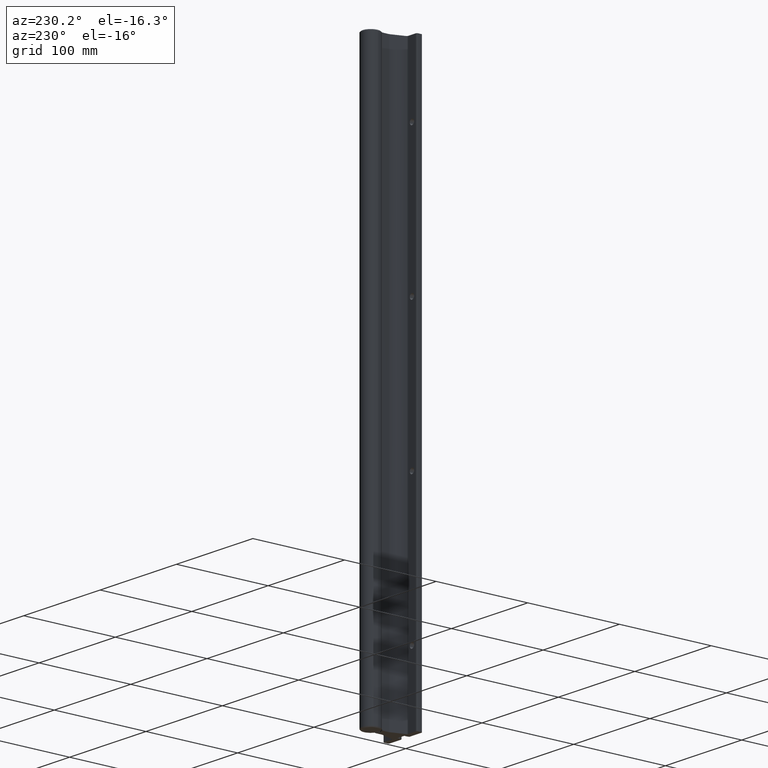
[diagram: clean part render]
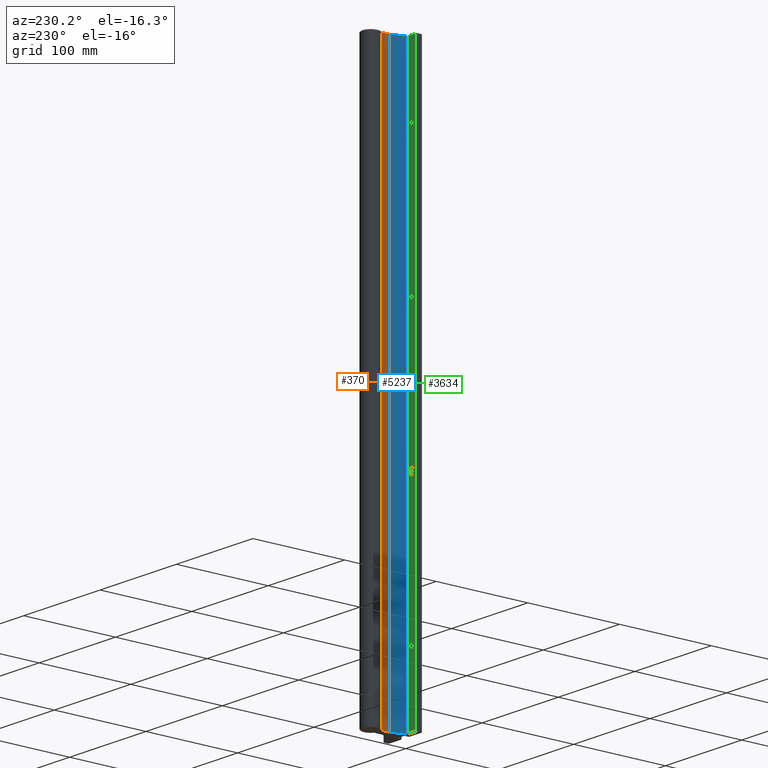
[diagram: same view with three faces highlighted in distinct colors, each labeled with its STEP entity id]
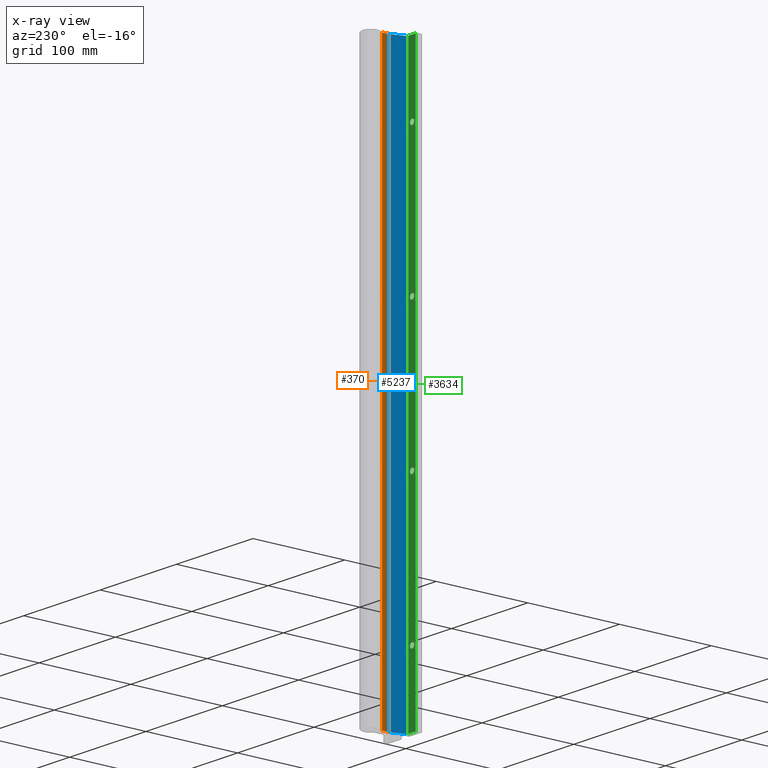
[diagram: x-ray of the same camera — body ghosted, the three highlighted faces saturated]
A machine part, auxiliary view with three faces highlighted in distinct colors.
The next image is the same camera in x-ray (body ghosted, the three faces saturated) — at least one of them is partly hidden behind the body in this view.
Their STEP definitions:

[orange] entity #370 — the highlighted planar face has unit normal (-1, 0, 0).
#152 = VERTEX_POINT ( 'NONE', #2481 ) ;
#251 = ORIENTED_EDGE ( 'NONE', *, *, #3077, .F. ) ;
#370 = ADVANCED_FACE ( 'NONE', ( #1923 ), #3578, .T. ) ;
#606 = DIRECTION ( 'NONE',  ( 0.0000000000000000000, 0.0000000000000000000, 1.000000000000000000 ) ) ;
#691 = CARTESIAN_POINT ( 'NONE',  ( -0.1875000000000001943, 1.169177754238574618, -26.10463218188032641 ) ) ;
#882 = AXIS2_PLACEMENT_3D ( 'NONE', #691, #4591, #1636 ) ;
#963 = VECTOR ( 'NONE', #606, 39.37007874015748143 ) ;
#990 = CARTESIAN_POINT ( 'NONE',  ( -0.1875000000000001943, 1.169177754238574618, -24.00000000000000355 ) ) ;
#1055 = DIRECTION ( 'NONE',  ( 9.170384428801442724E-16, 1.000000000000000000, -0.0000000000000000000 ) ) ;
#1062 = EDGE_CURVE ( 'NONE', #5113, #152, #5459, .T. ) ;
#1482 = LINE ( 'NONE', #5526, #5398 ) ;
#1636 = DIRECTION ( 'NONE',  ( -9.170384428801442724E-16, -1.000000000000000000, 0.0000000000000000000 ) ) ;
#1923 = FACE_OUTER_BOUND ( 'NONE', #5215, .T. ) ;
#2047 = LINE ( 'NONE', #3970, #963 ) ;
#2068 = VERTEX_POINT ( 'NONE', #2752 ) ;
#2426 = CARTESIAN_POINT ( 'NONE',  ( -0.1875000000000004718, 0.8712787932000009006, -26.10463218188032641 ) ) ;
#2481 = CARTESIAN_POINT ( 'NONE',  ( -0.1875000000000004718, 0.8712787932000009006, 0.0000000000000000000 ) ) ;
#2592 = EDGE_CURVE ( 'NONE', #2068, #152, #5597, .T. ) ;
#2752 = CARTESIAN_POINT ( 'NONE',  ( -0.1875000000000001943, 1.169177754238574618, 0.0000000000000000000 ) ) ;
#2899 = DIRECTION ( 'NONE',  ( -9.170384428801442724E-16, -1.000000000000000000, 0.0000000000000000000 ) ) ;
#2984 = DIRECTION ( 'NONE',  ( 0.0000000000000000000, 0.0000000000000000000, 1.000000000000000000 ) ) ;
#3077 = EDGE_CURVE ( 'NONE', #5737, #2068, #2047, .T. ) ;
#3111 = ORIENTED_EDGE ( 'NONE', *, *, #2592, .F. ) ;
#3578 = PLANE ( 'NONE',  #882 ) ;
#3970 = CARTESIAN_POINT ( 'NONE',  ( -0.1875000000000001943, 1.169177754238574618, -26.10463218188032641 ) ) ;
#4079 = ORIENTED_EDGE ( 'NONE', *, *, #1062, .T. ) ;
#4086 = EDGE_CURVE ( 'NONE', #5113, #5737, #1482, .T. ) ;
#4591 = DIRECTION ( 'NONE',  ( -1.000000000000000000, 9.170384428801442724E-16, 0.0000000000000000000 ) ) ;
#4759 = VECTOR ( 'NONE', #2984, 39.37007874015748143 ) ;
#4950 = ORIENTED_EDGE ( 'NONE', *, *, #4086, .F. ) ;
#5113 = VERTEX_POINT ( 'NONE', #5960 ) ;
#5215 = EDGE_LOOP ( 'NONE', ( #4950, #4079, #3111, #251 ) ) ;
#5398 = VECTOR ( 'NONE', #1055, 39.37007874015748143 ) ;
#5459 = LINE ( 'NONE', #2426, #4759 ) ;
#5526 = CARTESIAN_POINT ( 'NONE',  ( -0.1875000000000001943, 1.169177754238574618, -24.00000000000000355 ) ) ;
#5597 = LINE ( 'NONE', #5846, #5889 ) ;
#5737 = VERTEX_POINT ( 'NONE', #990 ) ;
#5846 = CARTESIAN_POINT ( 'NONE',  ( -0.1875000000000001943, 1.169177754238574618, 0.0000000000000000000 ) ) ;
#5889 = VECTOR ( 'NONE', #2899, 39.37007874015748143 ) ;
#5960 = CARTESIAN_POINT ( 'NONE',  ( -0.1875000000000004718, 0.8712787932000006785, -24.00000000000000355 ) ) ;

[blue] entity #5237 — the highlighted planar face has unit normal (-0.9511, 0.309, 0).
#40 = VECTOR ( 'NONE', #3722, 39.37007874015748143 ) ;
#342 = VECTOR ( 'NONE', #3027, 39.37007874015748143 ) ;
#343 = VECTOR ( 'NONE', #1204, 39.37007874015748143 ) ;
#743 = LINE ( 'NONE', #5945, #342 ) ;
#971 = CARTESIAN_POINT ( 'NONE',  ( -0.1905589677000024129, 0.8519652309999998785, 0.0000000000000000000 ) ) ;
#1204 = DIRECTION ( 'NONE',  ( 0.3090169943511710260, 0.9510565163028790181, -0.0000000000000000000 ) ) ;
#1327 = VECTOR ( 'NONE', #5315, 39.37007874015748143 ) ;
#1692 = CARTESIAN_POINT ( 'NONE',  ( -0.3721172034000003181, 0.2931864378999994303, -24.00000000000000355 ) ) ;
#2409 = VERTEX_POINT ( 'NONE', #971 ) ;
#2518 = ORIENTED_EDGE ( 'NONE', *, *, #4308, .F. ) ;
#2566 = LINE ( 'NONE', #3760, #40 ) ;
#2623 = DIRECTION ( 'NONE',  ( -0.9510565163028790181, 0.3090169943511710260, 0.0000000000000000000 ) ) ;
#2651 = LINE ( 'NONE', #5254, #1327 ) ;
#2655 = EDGE_LOOP ( 'NONE', ( #3202, #4357, #2518, #6034 ) ) ;
#2670 = CARTESIAN_POINT ( 'NONE',  ( -0.1905589677000024129, 0.8519652309999998785, -24.00000000000000355 ) ) ;
#2762 = AXIS2_PLACEMENT_3D ( 'NONE', #5560, #2623, #5589 ) ;
#3027 = DIRECTION ( 'NONE',  ( 0.0000000000000000000, 0.0000000000000000000, 1.000000000000000000 ) ) ;
#3186 = VERTEX_POINT ( 'NONE', #3659 ) ;
#3202 = ORIENTED_EDGE ( 'NONE', *, *, #4696, .F. ) ;
#3659 = CARTESIAN_POINT ( 'NONE',  ( -0.3721172034000003737, 0.2931864378999993193, 0.0000000000000000000 ) ) ;
#3722 = DIRECTION ( 'NONE',  ( -0.3090169943511710260, -0.9510565163028790181, 0.0000000000000000000 ) ) ;
#3760 = CARTESIAN_POINT ( 'NONE',  ( -0.1905589677000024129, 0.8519652309999998785, 0.0000000000000000000 ) ) ;
#4098 = PLANE ( 'NONE',  #2762 ) ;
#4308 = EDGE_CURVE ( 'NONE', #2409, #3186, #2566, .T. ) ;
#4357 = ORIENTED_EDGE ( 'NONE', *, *, #6337, .T. ) ;
#4385 = CARTESIAN_POINT ( 'NONE',  ( -0.1905589677000024129, 0.8519652309999998785, -24.00000000000000355 ) ) ;
#4696 = EDGE_CURVE ( 'NONE', #5868, #5188, #6028, .T. ) ;
#5162 = FACE_OUTER_BOUND ( 'NONE', #2655, .T. ) ;
#5188 = VERTEX_POINT ( 'NONE', #4385 ) ;
#5237 = ADVANCED_FACE ( 'NONE', ( #5162 ), #4098, .T. ) ;
#5254 = CARTESIAN_POINT ( 'NONE',  ( -0.1905589677000024129, 0.8519652309999998785, -26.10463218188032641 ) ) ;
#5315 = DIRECTION ( 'NONE',  ( 0.0000000000000000000, 0.0000000000000000000, 1.000000000000000000 ) ) ;
#5560 = CARTESIAN_POINT ( 'NONE',  ( -0.1905589677000024129, 0.8519652309999998785, -26.10463218188032641 ) ) ;
#5589 = DIRECTION ( 'NONE',  ( -0.3090169943511710260, -0.9510565163028790181, 0.0000000000000000000 ) ) ;
#5868 = VERTEX_POINT ( 'NONE', #1692 ) ;
#5945 = CARTESIAN_POINT ( 'NONE',  ( -0.3721172034000003181, 0.2931864378999993193, -26.10463218188032641 ) ) ;
#6028 = LINE ( 'NONE', #2670, #343 ) ;
#6034 = ORIENTED_EDGE ( 'NONE', *, *, #6089, .F. ) ;
#6089 = EDGE_CURVE ( 'NONE', #5188, #2409, #2651, .T. ) ;
#6337 = EDGE_CURVE ( 'NONE', #5868, #3186, #743, .T. ) ;

[green] entity #3634 — the highlighted planar face has unit normal (-0, 1, 0).
#32 = CARTESIAN_POINT ( 'NONE',  ( -0.8150000000000001688, 0.2499999999999999167, 0.0000000000000000000 ) ) ;
#42 = VERTEX_POINT ( 'NONE', #5817 ) ;
#51 = FACE_BOUND ( 'NONE', #6262, .T. ) ;
#183 = EDGE_CURVE ( 'NONE', #397, #42, #5711, .T. ) ;
#249 = ORIENTED_EDGE ( 'NONE', *, *, #840, .T. ) ;
#284 = DIRECTION ( 'NONE',  ( -1.000000000000000000, -3.090325784688081870E-15, 0.0000000000000000000 ) ) ;
#303 = CARTESIAN_POINT ( 'NONE',  ( -0.6250000000000000000, 0.2500000000000004996, -15.00000000000000000 ) ) ;
#385 = DIRECTION ( 'NONE',  ( 3.027931502002314364E-15, -1.000000000000000000, -0.0000000000000000000 ) ) ;
#397 = VERTEX_POINT ( 'NONE', #4648 ) ;
#411 = VECTOR ( 'NONE', #6272, 39.37007874015748143 ) ;
#419 = CIRCLE ( 'NONE', #4602, 0.1104999999999999594 ) ;
#450 = CARTESIAN_POINT ( 'NONE',  ( -0.6250000000000000000, 0.2500000000000004996, -21.00000000000000355 ) ) ;
#490 = DIRECTION ( 'NONE',  ( -1.000000000000000000, -3.090325784688081870E-15, 0.0000000000000000000 ) ) ;
#595 = DIRECTION ( 'NONE',  ( -1.000000000000000000, -3.027931502002314364E-15, 0.0000000000000000000 ) ) ;
#636 = EDGE_CURVE ( 'NONE', #2220, #2572, #1240, .T. ) ;
#665 = VERTEX_POINT ( 'NONE', #2867 ) ;
#840 = EDGE_CURVE ( 'NONE', #42, #397, #1549, .T. ) ;
#965 = AXIS2_PLACEMENT_3D ( 'NONE', #303, #4727, #284 ) ;
#966 = VERTEX_POINT ( 'NONE', #2874 ) ;
#992 = CARTESIAN_POINT ( 'NONE',  ( -0.6250000000000000000, 0.2500000000000004996, -8.889500000000001734 ) ) ;
#1130 = DIRECTION ( 'NONE',  ( 3.027931502002314364E-15, -1.000000000000000000, -0.0000000000000000000 ) ) ;
#1151 = VERTEX_POINT ( 'NONE', #3096 ) ;
#1157 = EDGE_LOOP ( 'NONE', ( #1818, #3203 ) ) ;
#1195 = AXIS2_PLACEMENT_3D ( 'NONE', #4848, #385, #4870 ) ;
#1240 = CIRCLE ( 'NONE', #4665, 0.1104999999999999594 ) ;
#1245 = DIRECTION ( 'NONE',  ( -1.000000000000000000, -3.090325784688081870E-15, 0.0000000000000000000 ) ) ;
#1381 = EDGE_CURVE ( 'NONE', #966, #3990, #4456, .T. ) ;
#1538 = EDGE_LOOP ( 'NONE', ( #1913, #4961, #3968, #1884 ) ) ;
#1549 = CIRCLE ( 'NONE', #6307, 0.1104999999999999594 ) ;
#1573 = DIRECTION ( 'NONE',  ( -1.000000000000000000, -3.090325784688081870E-15, 0.0000000000000000000 ) ) ;
#1673 = AXIS2_PLACEMENT_3D ( 'NONE', #5500, #1995, #2982 ) ;
#1720 = LINE ( 'NONE', #2379, #411 ) ;
#1803 = ORIENTED_EDGE ( 'NONE', *, *, #636, .T. ) ;
#1818 = ORIENTED_EDGE ( 'NONE', *, *, #4122, .T. ) ;
#1819 = ORIENTED_EDGE ( 'NONE', *, *, #183, .T. ) ;
#1884 = ORIENTED_EDGE ( 'NONE', *, *, #5000, .F. ) ;
#1913 = ORIENTED_EDGE ( 'NONE', *, *, #4937, .F. ) ;
#1995 = DIRECTION ( 'NONE',  ( 3.027931502002314364E-15, -1.000000000000000000, -0.0000000000000000000 ) ) ;
#2037 = FACE_BOUND ( 'NONE', #1157, .T. ) ;
#2161 = CARTESIAN_POINT ( 'NONE',  ( -0.6250000000000000000, 0.2500000000000004996, -15.00000000000000000 ) ) ;
#2220 = VERTEX_POINT ( 'NONE', #2895 ) ;
#2322 = CARTESIAN_POINT ( 'NONE',  ( -0.6250000000000000000, 0.2500000000000004996, -20.88950000000000173 ) ) ;
#2324 = DIRECTION ( 'NONE',  ( -1.000000000000000000, -3.090325784688081870E-15, 0.0000000000000000000 ) ) ;
#2329 = ORIENTED_EDGE ( 'NONE', *, *, #4073, .T. ) ;
#2379 = CARTESIAN_POINT ( 'NONE',  ( -0.4315582357000016800, 0.2500000000000011657, -26.10463218188032641 ) ) ;
#2550 = DIRECTION ( 'NONE',  ( -3.027931502002314364E-15, 1.000000000000000000, 0.0000000000000000000 ) ) ;
#2572 = VERTEX_POINT ( 'NONE', #2322 ) ;
#2654 = CIRCLE ( 'NONE', #2748, 0.1104999999999999594 ) ;
#2709 = CARTESIAN_POINT ( 'NONE',  ( -0.6250000000000000000, 0.2500000000000004996, -3.000000000000000444 ) ) ;
#2748 = AXIS2_PLACEMENT_3D ( 'NONE', #2161, #3097, #3583 ) ;
#2780 = EDGE_CURVE ( 'NONE', #3271, #5939, #4652, .T. ) ;
#2860 = CIRCLE ( 'NONE', #3926, 0.1104999999999999594 ) ;
#2867 = CARTESIAN_POINT ( 'NONE',  ( -0.6250000000000000000, 0.2500000000000004996, -9.110500000000001819 ) ) ;
#2874 = CARTESIAN_POINT ( 'NONE',  ( -0.8150000000000001688, 0.2499999999999999167, -24.00000000000000355 ) ) ;
#2888 = DIRECTION ( 'NONE',  ( 3.027931502002314364E-15, -1.000000000000000000, -0.0000000000000000000 ) ) ;
#2895 = CARTESIAN_POINT ( 'NONE',  ( -0.6250000000000000000, 0.2500000000000004996, -21.11050000000000537 ) ) ;
#2953 = FACE_BOUND ( 'NONE', #6288, .T. ) ;
#2982 = DIRECTION ( 'NONE',  ( -1.000000000000000000, -3.090325784688081870E-15, 0.0000000000000000000 ) ) ;
#2997 = DIRECTION ( 'NONE',  ( 0.0000000000000000000, 0.0000000000000000000, 1.000000000000000000 ) ) ;
#3018 = CIRCLE ( 'NONE', #1195, 0.1104999999999999594 ) ;
#3096 = CARTESIAN_POINT ( 'NONE',  ( -0.4315582357000016800, 0.2500000000000011657, 0.0000000000000000000 ) ) ;
#3097 = DIRECTION ( 'NONE',  ( 3.027931502002314364E-15, -1.000000000000000000, -0.0000000000000000000 ) ) ;
#3103 = CARTESIAN_POINT ( 'NONE',  ( -0.6250000000000000000, 0.2500000000000004996, -14.88949999999999996 ) ) ;
#3203 = ORIENTED_EDGE ( 'NONE', *, *, #2780, .T. ) ;
#3236 = DIRECTION ( 'NONE',  ( 3.027931502002314364E-15, -1.000000000000000000, -0.0000000000000000000 ) ) ;
#3271 = VERTEX_POINT ( 'NONE', #3103 ) ;
#3357 = ORIENTED_EDGE ( 'NONE', *, *, #4877, .T. ) ;
#3555 = FACE_OUTER_BOUND ( 'NONE', #1538, .T. ) ;
#3583 = DIRECTION ( 'NONE',  ( -1.000000000000000000, -3.090325784688081870E-15, 0.0000000000000000000 ) ) ;
#3634 = ADVANCED_FACE ( 'NONE', ( #51, #2037, #6190, #2953, #3555 ), #4387, .T. ) ;
#3640 = AXIS2_PLACEMENT_3D ( 'NONE', #3904, #2550, #595 ) ;
#3742 = VERTEX_POINT ( 'NONE', #992 ) ;
#3799 = DIRECTION ( 'NONE',  ( 3.027931502002314364E-15, -1.000000000000000000, -0.0000000000000000000 ) ) ;
#3904 = CARTESIAN_POINT ( 'NONE',  ( -0.4315582357000016800, 0.2500000000000011102, -26.10463218188032641 ) ) ;
#3918 = DIRECTION ( 'NONE',  ( 1.000000000000000000, 3.027931502002314364E-15, -0.0000000000000000000 ) ) ;
#3926 = AXIS2_PLACEMENT_3D ( 'NONE', #450, #3799, #2324 ) ;
#3968 = ORIENTED_EDGE ( 'NONE', *, *, #4022, .F. ) ;
#3990 = VERTEX_POINT ( 'NONE', #32 ) ;
#4014 = CARTESIAN_POINT ( 'NONE',  ( -0.6250000000000000000, 0.2500000000000004996, -9.000000000000001776 ) ) ;
#4022 = EDGE_CURVE ( 'NONE', #1151, #3990, #5101, .T. ) ;
#4024 = VECTOR ( 'NONE', #4547, 39.37007874015748143 ) ;
#4073 = EDGE_CURVE ( 'NONE', #3742, #665, #419, .T. ) ;
#4122 = EDGE_CURVE ( 'NONE', #5939, #3271, #2654, .T. ) ;
#4330 = CARTESIAN_POINT ( 'NONE',  ( -0.4315582357000016800, 0.2500000000000011657, -24.00000000000000355 ) ) ;
#4387 = PLANE ( 'NONE',  #3640 ) ;
#4388 = LINE ( 'NONE', #5893, #4920 ) ;
#4456 = LINE ( 'NONE', #5489, #5919 ) ;
#4499 = ORIENTED_EDGE ( 'NONE', *, *, #4813, .T. ) ;
#4547 = DIRECTION ( 'NONE',  ( -1.000000000000000000, -3.027931502002314364E-15, 0.0000000000000000000 ) ) ;
#4601 = EDGE_LOOP ( 'NONE', ( #3357, #2329 ) ) ;
#4602 = AXIS2_PLACEMENT_3D ( 'NONE', #4014, #1130, #1573 ) ;
#4648 = CARTESIAN_POINT ( 'NONE',  ( -0.6250000000000000000, 0.2500000000000004996, -2.889500000000000401 ) ) ;
#4652 = CIRCLE ( 'NONE', #965, 0.1104999999999999594 ) ;
#4665 = AXIS2_PLACEMENT_3D ( 'NONE', #5833, #2888, #490 ) ;
#4727 = DIRECTION ( 'NONE',  ( 3.027931502002314364E-15, -1.000000000000000000, -0.0000000000000000000 ) ) ;
#4813 = EDGE_CURVE ( 'NONE', #2572, #2220, #2860, .T. ) ;
#4848 = CARTESIAN_POINT ( 'NONE',  ( -0.6250000000000000000, 0.2500000000000004996, -9.000000000000001776 ) ) ;
#4870 = DIRECTION ( 'NONE',  ( -1.000000000000000000, -3.090325784688081870E-15, 0.0000000000000000000 ) ) ;
#4877 = EDGE_CURVE ( 'NONE', #665, #3742, #3018, .T. ) ;
#4920 = VECTOR ( 'NONE', #3918, 39.37007874015748143 ) ;
#4937 = EDGE_CURVE ( 'NONE', #966, #6145, #4388, .T. ) ;
#4961 = ORIENTED_EDGE ( 'NONE', *, *, #1381, .T. ) ;
#5000 = EDGE_CURVE ( 'NONE', #6145, #1151, #1720, .T. ) ;
#5101 = LINE ( 'NONE', #6048, #4024 ) ;
#5489 = CARTESIAN_POINT ( 'NONE',  ( -0.8150000000000001688, 0.2499999999999999167, -26.10463218188032641 ) ) ;
#5500 = CARTESIAN_POINT ( 'NONE',  ( -0.6250000000000000000, 0.2500000000000004996, -3.000000000000000444 ) ) ;
#5580 = CARTESIAN_POINT ( 'NONE',  ( -0.6250000000000000000, 0.2500000000000004996, -15.11050000000000004 ) ) ;
#5711 = CIRCLE ( 'NONE', #1673, 0.1104999999999999594 ) ;
#5817 = CARTESIAN_POINT ( 'NONE',  ( -0.6250000000000000000, 0.2500000000000004996, -3.110500000000000043 ) ) ;
#5833 = CARTESIAN_POINT ( 'NONE',  ( -0.6250000000000000000, 0.2500000000000004996, -21.00000000000000355 ) ) ;
#5893 = CARTESIAN_POINT ( 'NONE',  ( -0.4315582357000016800, 0.2500000000000011102, -24.00000000000000355 ) ) ;
#5919 = VECTOR ( 'NONE', #2997, 39.37007874015748143 ) ;
#5939 = VERTEX_POINT ( 'NONE', #5580 ) ;
#6048 = CARTESIAN_POINT ( 'NONE',  ( -0.4315582357000016800, 0.2500000000000011102, 0.0000000000000000000 ) ) ;
#6145 = VERTEX_POINT ( 'NONE', #4330 ) ;
#6190 = FACE_BOUND ( 'NONE', #4601, .T. ) ;
#6262 = EDGE_LOOP ( 'NONE', ( #1803, #4499 ) ) ;
#6272 = DIRECTION ( 'NONE',  ( 0.0000000000000000000, 0.0000000000000000000, 1.000000000000000000 ) ) ;
#6288 = EDGE_LOOP ( 'NONE', ( #249, #1819 ) ) ;
#6307 = AXIS2_PLACEMENT_3D ( 'NONE', #2709, #3236, #1245 ) ;